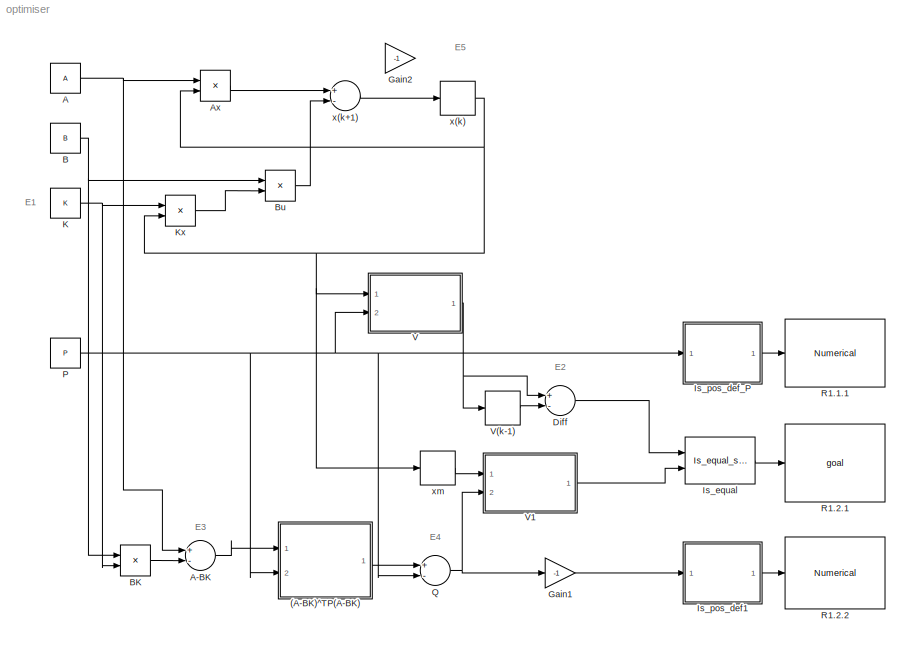
MODEL optimiser
KIND model
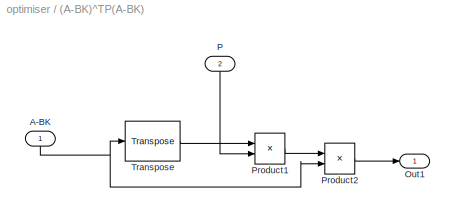
BLOCK [SubSystem] (A-BK)^TP(A-BK)
  FunctionWithSeparateData = off
  MaskHideContents = off
  MinAlgLoopOccurrences = off
  Opaque = off
  Ports = [2, 1]
  PropExecContextOutsideSubsystem = off
  RTWSystemCode = Auto
  RequestExecContextInheritance = off
  SID = 35
BLOCK [Inport] (A-BK)^TP(A-BK)/A-BK
  IconDisplay = Port number
  SID = 86
BLOCK [Outport] (A-BK)^TP(A-BK)/Out1
  IconDisplay = Port number
  SID = 46
BLOCK [Inport] (A-BK)^TP(A-BK)/P
  IconDisplay = Port number
  Port = 2
  SID = 39
BLOCK [Product] (A-BK)^TP(A-BK)/Product1
  InputSameDT = off
  Multiplication = Matrix(*)
  OutDataTypeStr = Inherit: Inherit via internal rule
  Ports = [2, 1]
  RndMeth = Floor
  SID = 42
  SaturateOnIntegerOverflow = off
BLOCK [Product] (A-BK)^TP(A-BK)/Product2
  InputSameDT = off
  Multiplication = Matrix(*)
  OutDataTypeStr = Inherit: Inherit via internal rule
  Ports = [2, 1]
  RndMeth = Floor
  SID = 43
  SaturateOnIntegerOverflow = off
BLOCK [Reference] (A-BK)^TP(A-BK)/Transpose  REF=dspmtrx3/Transpose
  Hermitian = off
  Ports = [1, 1]
  SID = 45
  SourceBlock = dspmtrx3/Transpose
  SourceType = Transpose
  overflowFlag = off
BLOCK [Constant] A
  SID = 2
  Value = A
  VectorParams1D = off
BLOCK [Sum] A-BK
  InputSameDT = off
  Inputs = +-
  OutDataTypeStr = Inherit: Inherit via internal rule
  Ports = [2, 1]
  SID = 40
  SaturateOnIntegerOverflow = off
BLOCK [Product] Ax
  InputSameDT = off
  Multiplication = Matrix(*)
  OutDataTypeStr = Inherit: Inherit via internal rule
  Ports = [2, 1]
  RndMeth = Floor
  SID = 54
  SaturateOnIntegerOverflow = off
BLOCK [Constant] B
  SID = 3
  Value = B
  VectorParams1D = off
BLOCK [Product] BK
  InputSameDT = off
  Multiplication = Matrix(*)
  OutDataTypeStr = Inherit: Inherit via internal rule
  Ports = [2, 1]
  RndMeth = Floor
  SID = 41
  SaturateOnIntegerOverflow = off
BLOCK [Product] Bu
  InputSameDT = off
  Multiplication = Matrix(*)
  OutDataTypeStr = Inherit: Inherit via internal rule
  Ports = [2, 1]
  RndMeth = Floor
  SID = 55
  SaturateOnIntegerOverflow = off
BLOCK [Sum] Diff
  InputSameDT = off
  Inputs = +-
  OutDataTypeStr = Inherit: Inherit via internal rule
  Ports = [2, 1]
  SID = 49
  SaturateOnIntegerOverflow = off
BLOCK [Gain] Gain1
  Gain = -1
  OutDataTypeStr = Inherit: Inherit via internal rule
  ParamDataTypeStr = Inherit: Inherit via internal rule
  SID = 140
  SaturateOnIntegerOverflow = off
BLOCK [Gain] Gain2
  Gain = -1
  OutDataTypeStr = Inherit: Inherit via internal rule
  ParamDataTypeStr = Inherit: Inherit via internal rule
  SID = 141
  SaturateOnIntegerOverflow = off
BLOCK [Reference] Is_equal  REF=Is_equal_scalar/Is_equal_scalar
  FunctionWithSeparateData = off
  GeneratePreprocessorConditionals = off
  Ports = [2, 1]
  SID = 103
  ShowPortLabels = FromPortIcon
  SourceBlock = Is_equal_scalar/Is_equal_scalar
  SourceType = Is_equal_scalar
  SystemSampleTime = -1
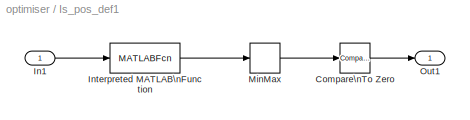
BLOCK [SubSystem] Is_pos_def1
  FunctionWithSeparateData = off
  MaskHideContents = off
  MinAlgLoopOccurrences = off
  Opaque = off
  Ports = [1, 1]
  PropExecContextOutsideSubsystem = off
  RTWSystemCode = Auto
  RequestExecContextInheritance = off
  SID = 87
  TreatAsAtomicUnit = on
BLOCK [Reference] Is_pos_def1/Compare\nTo Zero  REF=simulink/Logic and Bit\nOperations/Compare\nTo Zero
  OutDataTypeStr = boolean
  Ports = [1, 1]
  SID = 89
  SourceBlock = simulink/Logic and Bit\nOperations/Compare\nTo Zero
  SourceType = Compare To Zero
  ZeroCross = on
  relop = >=
BLOCK [Inport] Is_pos_def1/In1
  IconDisplay = Port number
  SID = 88
BLOCK [MATLABFcn] Is_pos_def1/Interpreted MATLAB\nFunction
  MATLABFcn = eig
  Ports = [1, 1]
  SID = 90
BLOCK [MinMax] Is_pos_def1/MinMax
  InputSameDT = off
  Ports = [1, 1]
  SID = 91
  SaturateOnIntegerOverflow = off
BLOCK [Outport] Is_pos_def1/Out1
  IconDisplay = Port number
  SID = 92
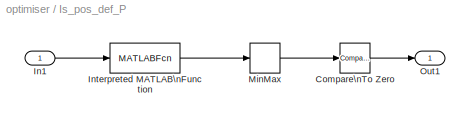
BLOCK [SubSystem] Is_pos_def_P
  FunctionWithSeparateData = off
  MaskHideContents = off
  MinAlgLoopOccurrences = off
  Opaque = off
  Ports = [1, 1]
  PropExecContextOutsideSubsystem = off
  RTWSystemCode = Auto
  RequestExecContextInheritance = off
  SID = 79
  TreatAsAtomicUnit = on
BLOCK [Reference] Is_pos_def_P/Compare\nTo Zero  REF=simulink/Logic and Bit\nOperations/Compare\nTo Zero
  OutDataTypeStr = boolean
  Ports = [1, 1]
  SID = 81
  SourceBlock = simulink/Logic and Bit\nOperations/Compare\nTo Zero
  SourceType = Compare To Zero
  ZeroCross = on
  relop = >=
BLOCK [Inport] Is_pos_def_P/In1
  IconDisplay = Port number
  SID = 80
BLOCK [MATLABFcn] Is_pos_def_P/Interpreted MATLAB\nFunction
  MATLABFcn = eig
  Ports = [1, 1]
  SID = 82
BLOCK [MinMax] Is_pos_def_P/MinMax
  InputSameDT = off
  Ports = [1, 1]
  SID = 83
  SaturateOnIntegerOverflow = off
BLOCK [Outport] Is_pos_def_P/Out1
  IconDisplay = Port number
  SID = 84
BLOCK [Constant] K
  SID = 1
  Value = K
  VectorParams1D = off
BLOCK [Product] Kx
  InputSameDT = off
  Multiplication = Matrix(*)
  OutDataTypeStr = Inherit: Inherit via internal rule
  Ports = [2, 1]
  RndMeth = Floor
  SID = 8
  SaturateOnIntegerOverflow = off
BLOCK [Constant] P
  SID = 34
  Value = P
  VectorParams1D = off
BLOCK [Sum] Q
  InputSameDT = off
  Inputs = +-
  OutDataTypeStr = Inherit: Inherit via internal rule
  Ports = [2, 1]
  SID = 93
  SaturateOnIntegerOverflow = off
BLOCK [Reference] R1.1.1  REF=Numerical/Numerical
  FunctionWithSeparateData = off
  GeneratePreprocessorConditionals = off
  Ports = [1]
  SID = 32
  ShowPortLabels = FromPortIcon
  SourceBlock = Numerical/Numerical
  SourceType = Numerical
  SystemSampleTime = -1
BLOCK [Reference] R1.2.1  REF=goal/goal  (lib defined in mdl_8f4c38bfa861)
  FunctionWithSeparateData = off
  GeneratePreprocessorConditionals = off
  Ports = [1]
  SID = 105
  ShowPortLabels = FromPortIcon
  SourceBlock = goal/goal
  SourceType = Goal
  SystemSampleTime = -1
BLOCK [Reference] R1.2.2  REF=Numerical/Numerical
  FunctionWithSeparateData = off
  GeneratePreprocessorConditionals = off
  Ports = [1]
  SID = 31
  ShowPortLabels = FromPortIcon
  SourceBlock = Numerical/Numerical
  SourceType = Numerical
  SystemSampleTime = -1
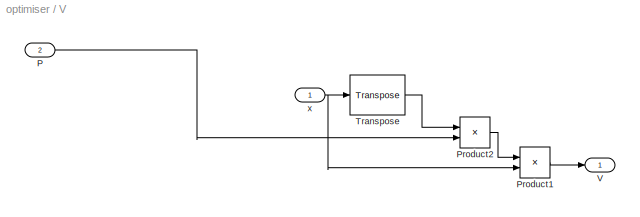
BLOCK [SubSystem] V
  FunctionWithSeparateData = off
  MaskHideContents = off
  MinAlgLoopOccurrences = off
  Opaque = off
  Ports = [2, 1]
  PropExecContextOutsideSubsystem = off
  RTWSystemCode = Auto
  RequestExecContextInheritance = off
  SID = 66
BLOCK [Delay] V(k-1)
  DelayLength = 1
  InitialCondition = x0'*P*x0
  InputPortMap = u0
  Ports = [1, 1]
  SID = 76
  SampleTime = 0.1
BLOCK [Inport] V/P
  IconDisplay = Port number
  Port = 2
  SID = 67
BLOCK [Product] V/Product1
  InputSameDT = off
  Multiplication = Matrix(*)
  OutDataTypeStr = Inherit: Inherit via internal rule
  Ports = [2, 1]
  RndMeth = Floor
  SID = 69
  SaturateOnIntegerOverflow = off
BLOCK [Product] V/Product2
  InputSameDT = off
  Multiplication = Matrix(*)
  OutDataTypeStr = Inherit: Inherit via internal rule
  Ports = [2, 1]
  RndMeth = Floor
  SID = 70
  SaturateOnIntegerOverflow = off
BLOCK [Reference] V/Transpose  REF=dspmtrx3/Transpose
  Hermitian = off
  Ports = [1, 1]
  SID = 71
  SourceBlock = dspmtrx3/Transpose
  SourceType = Transpose
  overflowFlag = off
BLOCK [Outport] V/V
  IconDisplay = Port number
  SID = 72
BLOCK [Inport] V/x
  IconDisplay = Port number
  SID = 68
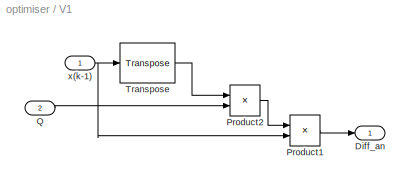
BLOCK [SubSystem] V1
  FunctionWithSeparateData = off
  MaskHideContents = off
  MinAlgLoopOccurrences = off
  Opaque = off
  Ports = [2, 1]
  PropExecContextOutsideSubsystem = off
  RTWSystemCode = Auto
  RequestExecContextInheritance = off
  SID = 94
BLOCK [Outport] V1/Diff_an
  IconDisplay = Port number
  SID = 100
BLOCK [Product] V1/Product1
  InputSameDT = off
  Multiplication = Matrix(*)
  OutDataTypeStr = Inherit: Inherit via internal rule
  Ports = [2, 1]
  RndMeth = Floor
  SID = 97
  SaturateOnIntegerOverflow = off
BLOCK [Product] V1/Product2
  InputSameDT = off
  Multiplication = Matrix(*)
  OutDataTypeStr = Inherit: Inherit via internal rule
  Ports = [2, 1]
  RndMeth = Floor
  SID = 98
  SaturateOnIntegerOverflow = off
BLOCK [Inport] V1/Q
  IconDisplay = Port number
  Port = 2
  SID = 96
BLOCK [Reference] V1/Transpose  REF=dspmtrx3/Transpose
  Hermitian = off
  Ports = [1, 1]
  SID = 99
  SourceBlock = dspmtrx3/Transpose
  SourceType = Transpose
  overflowFlag = off
BLOCK [Inport] V1/x(k-1)
  IconDisplay = Port number
  SID = 95
BLOCK [Delay] x(k)
  DelayLength = 1
  InitialCondition = x1
  InputPortMap = u0
  Ports = [1, 1]
  SID = 56
  SampleTime = 0.1
BLOCK [Sum] x(k+1)
  InputSameDT = off
  Inputs = +-
  OutDataTypeStr = Inherit: Inherit via internal rule
  Ports = [2, 1]
  SID = 57
  SaturateOnIntegerOverflow = off
BLOCK [Delay] xm
  DelayLength = 1
  InitialCondition = x0
  InputPortMap = u0
  Ports = [1, 1]
  SID = 102
  SampleTime = 0.1
ANNOTATION (root): E1
ANNOTATION (root): E2
ANNOTATION (root): E3
ANNOTATION (root): E4
ANNOTATION (root): E5
NET (A-BK)^TP(A-BK)/A-BK:1 -> (A-BK)^TP(A-BK)/Product2:2, (A-BK)^TP(A-BK)/Transpose:1
LINE (A-BK)^TP(A-BK)/P:1 -> (A-BK)^TP(A-BK)/Product1:2
LINE (A-BK)^TP(A-BK)/Product1:1 -> (A-BK)^TP(A-BK)/Product2:1
LINE (A-BK)^TP(A-BK)/Product2:1 -> (A-BK)^TP(A-BK)/Out1:1
LINE (A-BK)^TP(A-BK)/Transpose:1 -> (A-BK)^TP(A-BK)/Product1:1
LINE (A-BK)^TP(A-BK):1 -> Q:1
LINE A-BK:1 -> (A-BK)^TP(A-BK):1
NET A:1 -> A-BK:1, Ax:1
LINE Ax:1 -> x(k+1):1
NET B:1 -> BK:1, Bu:1
LINE BK:1 -> A-BK:2
LINE Bu:1 -> x(k+1):2
LINE Diff:1 -> Is_equal:1
LINE Gain1:1 -> Is_pos_def1:1
LINE Is_equal:1 -> R1.2.1:1
LINE Is_pos_def1/Compare\nTo Zero:1 -> Is_pos_def1/Out1:1
LINE Is_pos_def1/In1:1 -> Is_pos_def1/Interpreted MATLAB\nFunction:1
LINE Is_pos_def1/Interpreted MATLAB\nFunction:1 -> Is_pos_def1/MinMax:1
LINE Is_pos_def1/MinMax:1 -> Is_pos_def1/Compare\nTo Zero:1
LINE Is_pos_def1:1 -> R1.2.2:1
LINE Is_pos_def_P/Compare\nTo Zero:1 -> Is_pos_def_P/Out1:1
LINE Is_pos_def_P/In1:1 -> Is_pos_def_P/Interpreted MATLAB\nFunction:1
LINE Is_pos_def_P/Interpreted MATLAB\nFunction:1 -> Is_pos_def_P/MinMax:1
LINE Is_pos_def_P/MinMax:1 -> Is_pos_def_P/Compare\nTo Zero:1
LINE Is_pos_def_P:1 -> R1.1.1:1
NET K:1 -> BK:2, Kx:1
LINE Kx:1 -> Bu:2
NET P:1 -> (A-BK)^TP(A-BK):2, Is_pos_def_P:1, Q:2, V:2
NET Q:1 -> Gain1:1, V1:2
LINE V(k-1):1 -> Diff:2
LINE V/P:1 -> V/Product2:2
LINE V/Product1:1 -> V/V:1
LINE V/Product2:1 -> V/Product1:1
LINE V/Transpose:1 -> V/Product2:1
NET V/x:1 -> V/Product1:2, V/Transpose:1
LINE V1/Product1:1 -> V1/Diff_an:1
LINE V1/Product2:1 -> V1/Product1:1
LINE V1/Q:1 -> V1/Product2:2
LINE V1/Transpose:1 -> V1/Product2:1
NET V1/x(k-1):1 -> V1/Product1:2, V1/Transpose:1
LINE V1:1 -> Is_equal:2
NET V:1 -> Diff:1, V(k-1):1
NET x(k):1 -> Ax:2, Kx:2, V:1, xm:1
LINE x(k+1):1 -> x(k):1
LINE xm:1 -> V1:1
note: NET lines group one-source signal fan-out (src -> all destinations, sorted); 1:1 wires keep LINE
